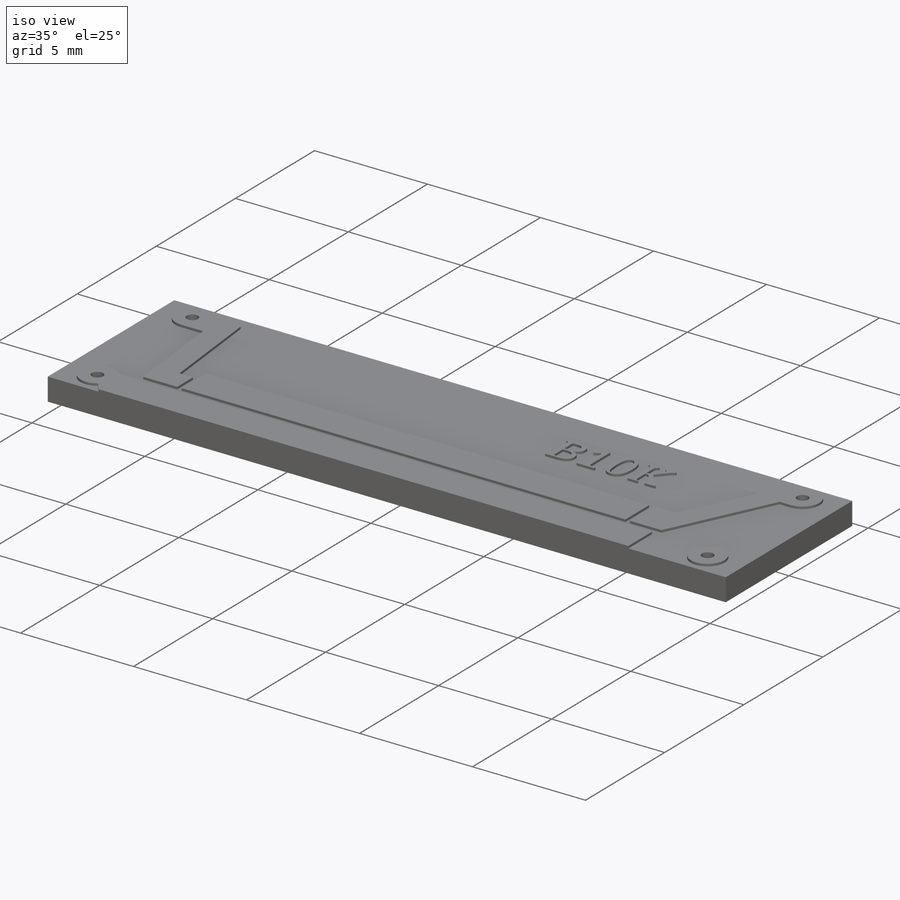
[diagram: iso view]
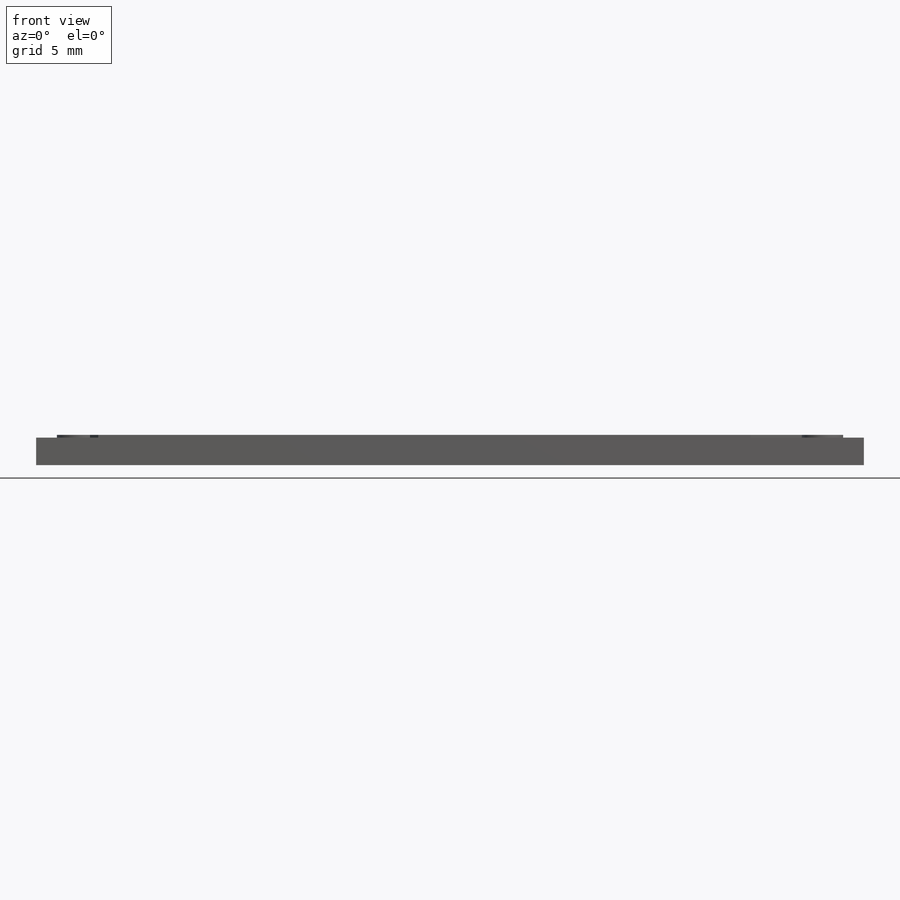
[diagram: front view]
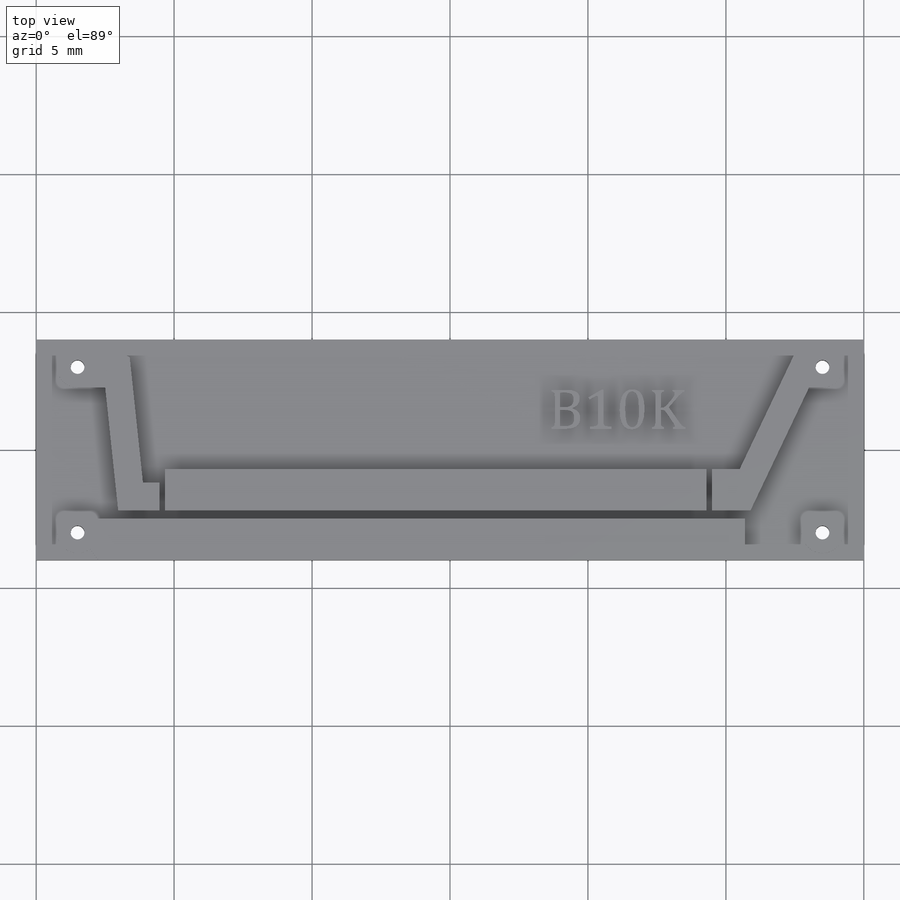
[diagram: top view]
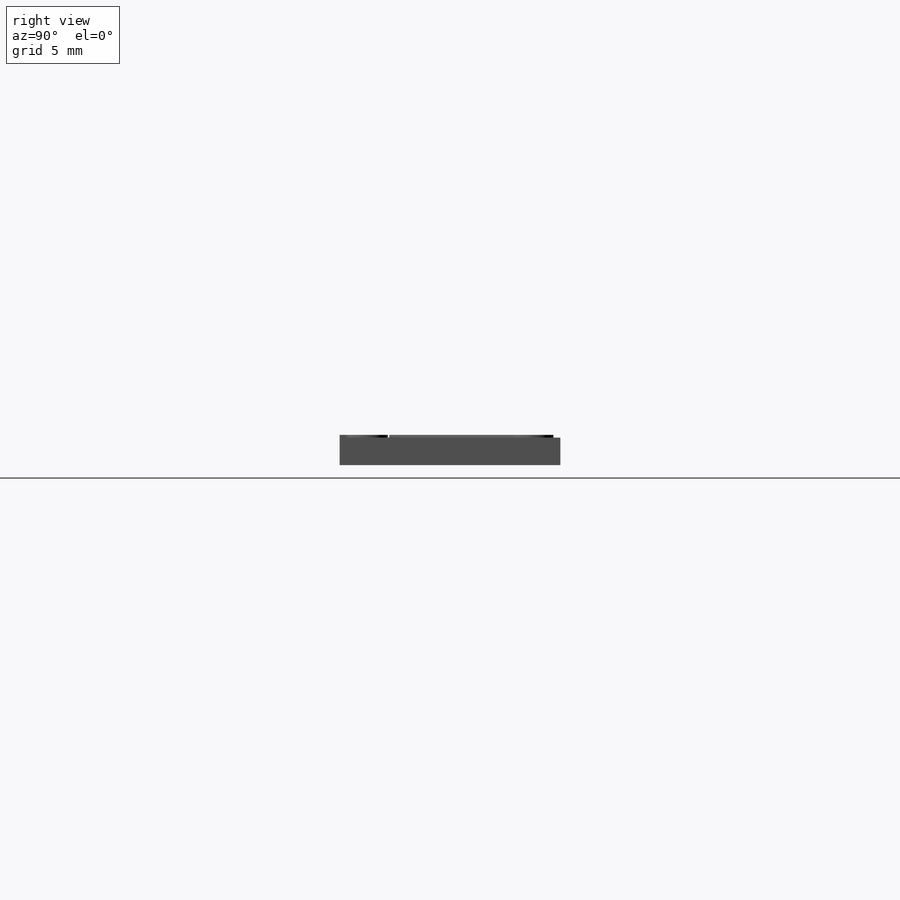
[diagram: right view]
SOLIDWORKS PART (.sldprt)
format: sldprt  version: not decoded by parser v0  size: 418,304 bytes
history: native  units: mm
features: sketch x5, plane x3, extrude x3, cut_extrude x2, material x1 (+8 scaffold rows collapsed)
feature tree (22):
  scaffold x8  (default folders/planes/origin — collapsed)
  material  "材质 <未指定>"
  plane  "前视基准面"
  plane  "上视基准面"
  plane  "右视基准面"
  sketch  "草图1"  dims[c1.D1=~45.801438mm c1.D2=~125.190598mm c2.D1=30.0mm c2.D2=8.0mm]
  extrude  "凸台-拉伸1"  Depth=1mm
  sketch  "草图2"  dims[D1=1.0mm D2=1.5mm D3=~2.546043mm]
  cut_extrude  "切除-拉伸1"  Depth=3mm
  sketch  "草图3"  dims[c1.D1=0.8mm c1.D8=1.5mm c1.D21=1.5mm c2.D8=1.5mm c2.D9=1.5mm c2.D1=1.5mm c2.D2=1.5mm c2.D3=1.0mm c2.D4=~4.776463mm c3.D4=~0.302509deg c4.D4=1.0mm c4.D5=1.5mm c4.D6=1.0mm c4.D7=1.0mm c4.D8=15.0mm c4.D9=1.0mm c4.D10=~11.497972mm c5.D9=0.3mm c5.D10=1.0mm c5.D11=1.0mm c6.D11=120.0deg c6.D12=2.0mm c6.D13=1.0mm c6.D14=1.0mm c6.D15=1.0mm c6.D16=0.2mm c6.D17=0.2mm c6.D18=~19.630278mm c6.D19=0.2mm c6.D20=0.3mm c6.D21=0.2mm c6.D4=0.6mm c7.D11=1.0mm c7.D15=1.5mm c7.D22=~1.132583mm c8.D22=120.0deg c8.D8=3.325mm]
  extrude  "凸台-拉伸2"  Depth=0.1mm
  sketch  "草图4"  dims[D1=0.0mm D2=0.0mm D3=0.0mm D4=0.0mm]
  cut_extrude  "切除-拉伸2"  Depth=10mm
  sketch  "草图5"
  extrude  "凸台-拉伸3"  Depth=0.1mm
decode coverage: 9 of 10 modeling features carry decoded parameters
note: ~ marks probable driven/reference dimensions
note: suppression state not decoded; provenance and decode notes live in map.json
